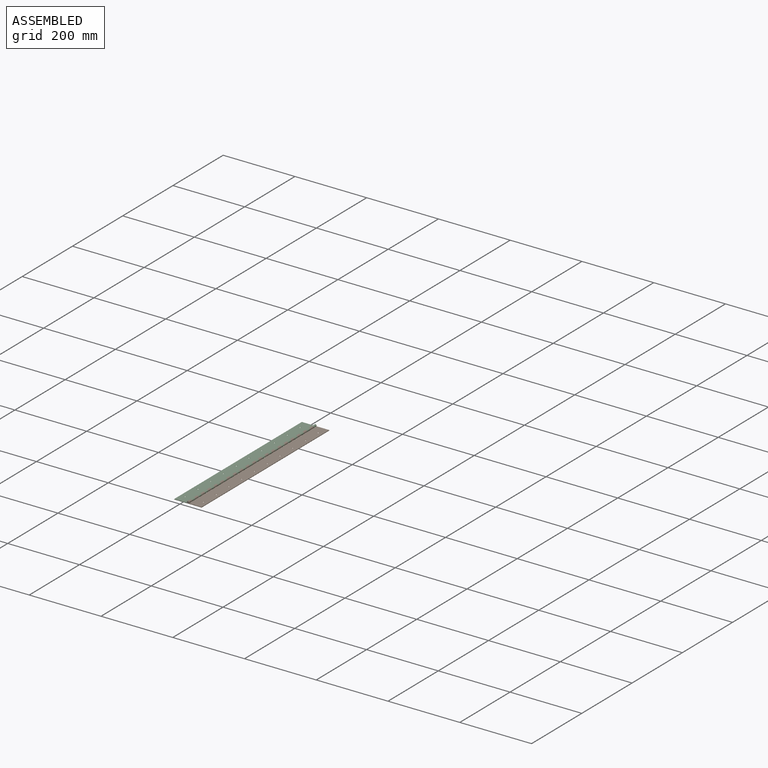
[diagram: assembled view]
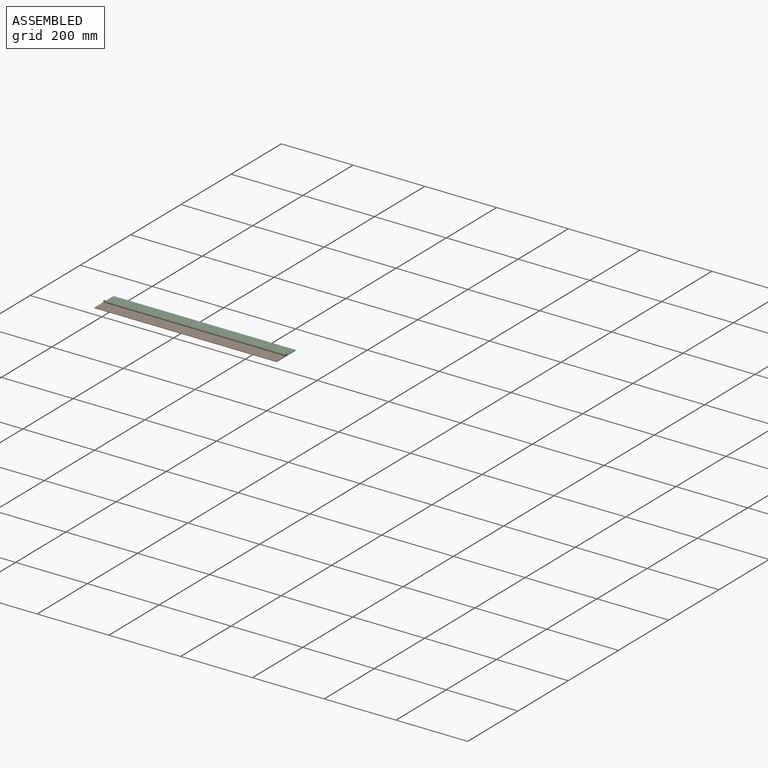
[diagram: assembled view, second angle]
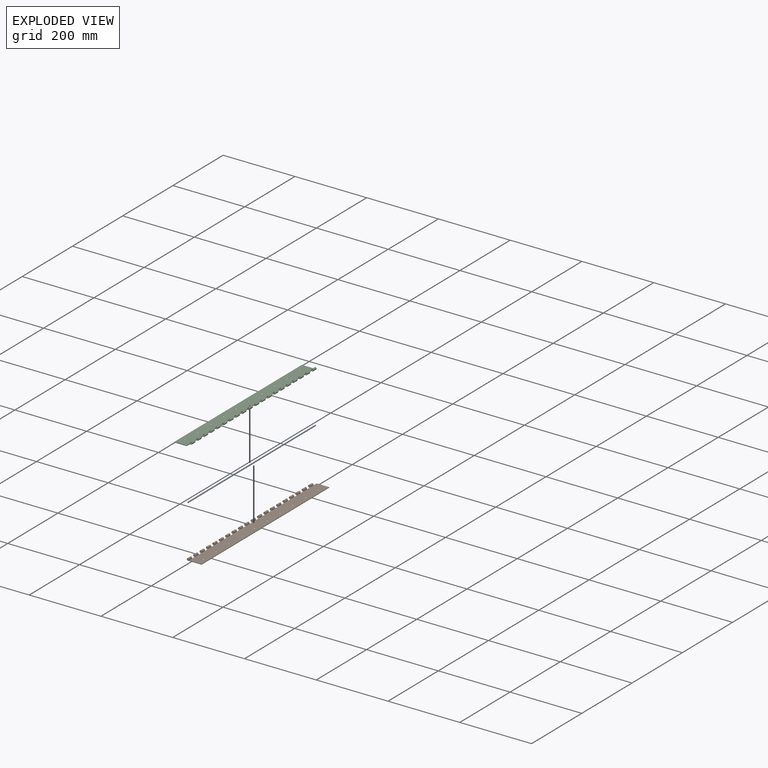
[diagram: exploded view]
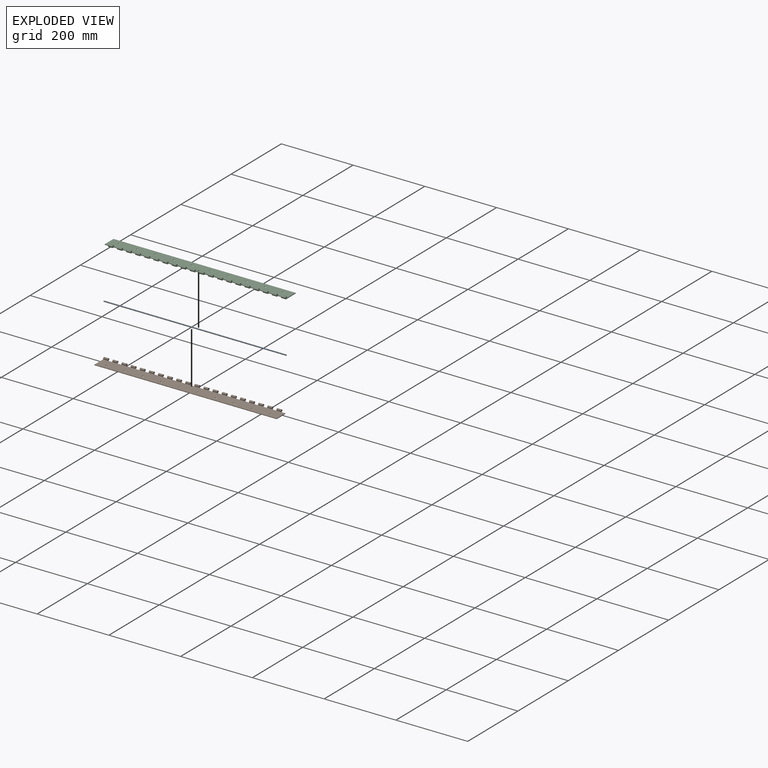
[diagram: exploded view, second angle]
ASSEMBLY  parts=3 mates=2
PART A: 3 faces, bbox 3.2x508x3.2 mm
  f0: cylinder r=1.59mm len=508mm, axis (0,1,0), area 5067.1mm2, adj f1,f2
  f1: plane 3.18x3.18mm, normal (0,-1,0), area 7.9mm2, adj f0
  f2: plane 3.18x3.18mm, normal (0,1,0), area 7.9mm2, adj f0
PART B: 144 faces, bbox 41.2x508x6.2 mm
  f0: cylinder r=1.59mm len=12.7mm, axis (0,1,0), area 105.7mm2, adj f1,f62,f121,f122
  f1: plane 12.7x1.31mm, normal (-0.51,0,-0.86), area 19.4mm2, adj f0,f2,f121,f122
  f2: cylinder r=3.11mm len=12.7mm, axis (0,1,0), area 207.2mm2, adj f1,f60,f121,f122
  f3: cylinder r=1.59mm len=12.7mm, axis (0,1,0), area 105.7mm2, adj f4,f62,f118,f119
  f4: plane 12.7x1.31mm, normal (-0.51,0,-0.86), area 19.4mm2, adj f3,f5,f118,f119
  f5: cylinder r=3.11mm len=12.7mm, axis (0,1,0), area 207.2mm2, adj f4,f60,f118,f119
  f6: cylinder r=1.59mm len=12.7mm, axis (0,1,0), area 105.7mm2, adj f7,f62,f115,f116
  f7: plane 12.7x1.31mm, normal (-0.51,0,-0.86), area 19.4mm2, adj f6,f8,f115,f116
  f8: cylinder r=3.11mm len=12.7mm, axis (0,1,0), area 207.2mm2, adj f7,f60,f115,f116
  f9: cylinder r=1.59mm len=12.7mm, axis (0,1,0), area 105.7mm2, adj f10,f62,f112,f113
  f10: plane 12.7x1.31mm, normal (-0.51,0,-0.86), area 19.4mm2, adj f9,f11,f112,f113
  f11: cylinder r=3.11mm len=12.7mm, axis (0,1,0), area 207.2mm2, adj f10,f60,f112,f113
  f12: cylinder r=1.59mm len=12.7mm, axis (0,1,0), area 105.7mm2, adj f13,f62,f109,f110
  f13: plane 12.7x1.31mm, normal (-0.51,0,-0.86), area 19.4mm2, adj f12,f14,f109,f110
  f14: cylinder r=3.11mm len=12.7mm, axis (0,1,0), area 207.2mm2, adj f13,f60,f109,f110
  f15: cylinder r=1.59mm len=12.7mm, axis (0,1,0), area 105.7mm2, adj f16,f62,f106,f107
  f16: plane 12.7x1.31mm, normal (-0.51,0,-0.86), area 19.4mm2, adj f15,f17,f106,f107
  f17: cylinder r=3.11mm len=12.7mm, axis (0,1,0), area 207.2mm2, adj f16,f60,f106,f107
  f18: cylinder r=1.59mm len=12.7mm, axis (0,1,0), area 105.7mm2, adj f19,f62,f103,f104
  f19: plane 12.7x1.31mm, normal (-0.51,0,-0.86), area 19.4mm2, adj f18,f20,f103,f104
  f20: cylinder r=3.11mm len=12.7mm, axis (0,1,0), area 207.2mm2, adj f19,f60,f103,f104
  f21: cylinder r=1.59mm len=12.7mm, axis (0,1,0), area 105.7mm2, adj f22,f62,f100,f101
  f22: plane 12.7x1.31mm, normal (-0.51,0,-0.86), area 19.4mm2, adj f21,f23,f100,f101
  f23: cylinder r=3.11mm len=12.7mm, axis (0,1,0), area 207.2mm2, adj f22,f60,f100,f101
  f24: cylinder r=1.59mm len=12.7mm, axis (0,1,0), area 105.7mm2, adj f25,f62,f97,f98
  f25: plane 12.7x1.31mm, normal (-0.51,0,-0.86), area 19.4mm2, adj f24,f26,f97,f98
  f26: cylinder r=3.11mm len=12.7mm, axis (0,1,0), area 207.2mm2, adj f25,f60,f97,f98
  f27: cylinder r=1.59mm len=12.7mm, axis (0,1,0), area 105.7mm2, adj f28,f62,f94,f95
  f28: plane 12.7x1.31mm, normal (-0.51,0,-0.86), area 19.4mm2, adj f27,f29,f94,f95
  f29: cylinder r=3.11mm len=12.7mm, axis (0,1,0), area 207.2mm2, adj f28,f60,f94,f95
  f30: cylinder r=1.59mm len=12.7mm, axis (0,1,0), area 105.7mm2, adj f31,f62,f91,f92
  f31: plane 12.7x1.31mm, normal (-0.51,0,-0.86), area 19.4mm2, adj f30,f32,f91,f92
  f32: cylinder r=3.11mm len=12.7mm, axis (0,1,0), area 207.2mm2, adj f31,f60,f91,f92
  f33: cylinder r=1.59mm len=12.7mm, axis (0,1,0), area 105.7mm2, adj f34,f62,f88,f89
  f34: plane 12.7x1.31mm, normal (-0.51,0,-0.86), area 19.4mm2, adj f33,f35,f88,f89
  f35: cylinder r=3.11mm len=12.7mm, axis (0,1,0), area 207.2mm2, adj f34,f60,f88,f89
  f36: cylinder r=1.59mm len=12.7mm, axis (0,1,0), area 105.7mm2, adj f37,f62,f85,f86
  f37: plane 12.7x1.31mm, normal (-0.51,0,-0.86), area 19.4mm2, adj f36,f38,f85,f86
  f38: cylinder r=3.11mm len=12.7mm, axis (0,1,0), area 207.2mm2, adj f37,f60,f85,f86
  f39: cylinder r=1.59mm len=12.7mm, axis (0,1,0), area 105.7mm2, adj f40,f62,f82,f83
  f40: plane 12.7x1.31mm, normal (-0.51,0,-0.86), area 19.4mm2, adj f39,f41,f82,f83
  f41: cylinder r=3.11mm len=12.7mm, axis (0,1,0), area 207.2mm2, adj f40,f60,f82,f83
  f42: cylinder r=1.59mm len=12.7mm, axis (0,1,0), area 105.7mm2, adj f43,f62,f79,f80
  f43: plane 12.7x1.31mm, normal (-0.51,0,-0.86), area 19.4mm2, adj f42,f44,f79,f80
  f44: cylinder r=3.11mm len=12.7mm, axis (0,1,0), area 207.2mm2, adj f43,f60,f79,f80
  f45: cylinder r=1.59mm len=12.7mm, axis (0,1,0), area 105.7mm2, adj f46,f62,f76,f77
  f46: plane 12.7x1.31mm, normal (-0.51,0,-0.86), area 19.4mm2, adj f45,f47,f76,f77
  f47: cylinder r=3.11mm len=12.7mm, axis (0,1,0), area 207.2mm2, adj f46,f60,f76,f77
  f48: cylinder r=1.59mm len=12.7mm, axis (0,1,0), area 105.7mm2, adj f49,f62,f73,f74
  f49: plane 12.7x1.31mm, normal (-0.51,0,-0.86), area 19.4mm2, adj f48,f50,f73,f74
  f50: cylinder r=3.11mm len=12.7mm, axis (0,1,0), area 207.2mm2, adj f49,f60,f73,f74
  f51: cylinder r=1.59mm len=12.7mm, axis (0,1,0), area 105.7mm2, adj f52,f62,f70,f71
  f52: plane 12.7x1.31mm, normal (-0.51,0,-0.86), area 19.4mm2, adj f51,f53,f70,f71
  f53: cylinder r=3.11mm len=12.7mm, axis (0,1,0), area 207.2mm2, adj f52,f60,f70,f71
  f54: cylinder r=1.59mm len=12.7mm, axis (0,1,0), area 105.7mm2, adj f55,f62,f67,f68
  f55: plane 12.7x1.31mm, normal (-0.51,0,-0.86), area 19.4mm2, adj f54,f56,f67,f68
  f56: cylinder r=3.11mm len=12.7mm, axis (0,1,0), area 207.2mm2, adj f55,f60,f67,f68
  f57: cylinder r=1.59mm len=12.7mm, axis (0,1,0), area 105.7mm2, adj f58,f62,f63,f65
  f58: plane 12.7x1.31mm, normal (-0.51,0,-0.86), area 19.4mm2, adj f57,f59,f63,f65
  f59: cylinder r=3.11mm len=12.7mm, axis (0,1,0), area 207.2mm2, adj f58,f60,f63,f65
  f60: plane 508x38.1mm, normal (0,0,-1), area 18459.4mm2, adj f2,f5,f8,f11,f14,f17,f20,f23
  f61: plane 508x1.52mm, normal (1,0,0), area 774.2mm2, adj f60,f62,f63,f64
  f62: plane 508x38.1mm, normal (0,0,1), area 18252.8mm2, adj f0,f3,f6,f9,f12,f15,f18,f21
  f63: plane 41.21x6.22mm, normal (0,-1,0), area 76.8mm2, adj f57,f58,f59,f60,f61,f62
  f64: plane 34.99x1.52mm, normal (0,1,0), area 53.3mm2, adj f60,f61,f62,f123
  f65: plane 6.22x6.22mm, normal (0,1,0), area 23.5mm2, adj f57,f58,f59,f60,f62,f66
  f66: plane 12.7x1.52mm, normal (-1,0,0), area 19.4mm2, adj f60,f62,f65,f67
  f67: plane 6.22x6.22mm, normal (0,-1,0), area 23.5mm2, adj f54,f55,f56,f60,f62,f66
  f68: plane 6.22x6.22mm, normal (0,1,0), area 23.5mm2, adj f54,f55,f56,f60,f62,f69
  f69: plane 12.7x1.52mm, normal (-1,0,0), area 19.4mm2, adj f60,f62,f68,f70
  f70: plane 6.22x6.22mm, normal (0,-1,0), area 23.5mm2, adj f51,f52,f53,f60,f62,f69
  f71: plane 6.22x6.22mm, normal (0,1,0), area 23.5mm2, adj f51,f52,f53,f60,f62,f72
  f72: plane 12.7x1.52mm, normal (-1,0,0), area 19.4mm2, adj f60,f62,f71,f73
  f73: plane 6.22x6.22mm, normal (0,-1,0), area 23.5mm2, adj f48,f49,f50,f60,f62,f72
  f74: plane 6.22x6.22mm, normal (0,1,0), area 23.5mm2, adj f48,f49,f50,f60,f62,f75
  f75: plane 12.7x1.52mm, normal (-1,0,0), area 19.4mm2, adj f60,f62,f74,f76
  f76: plane 6.22x6.22mm, normal (0,-1,0), area 23.5mm2, adj f45,f46,f47,f60,f62,f75
  f77: plane 6.22x6.22mm, normal (0,1,0), area 23.5mm2, adj f45,f46,f47,f60,f62,f78
  f78: plane 12.7x1.52mm, normal (-1,0,0), area 19.4mm2, adj f60,f62,f77,f79
  f79: plane 6.22x6.22mm, normal (0,-1,0), area 23.5mm2, adj f42,f43,f44,f60,f62,f78
  f80: plane 6.22x6.22mm, normal (0,1,0), area 23.5mm2, adj f42,f43,f44,f60,f62,f81
  f81: plane 12.7x1.52mm, normal (-1,0,0), area 19.4mm2, adj f60,f62,f80,f82
  f82: plane 6.22x6.22mm, normal (0,-1,0), area 23.5mm2, adj f39,f40,f41,f60,f62,f81
  f83: plane 6.22x6.22mm, normal (0,1,0), area 23.5mm2, adj f39,f40,f41,f60,f62,f84
  f84: plane 12.7x1.52mm, normal (-1,0,0), area 19.4mm2, adj f60,f62,f83,f85
  f85: plane 6.22x6.22mm, normal (0,-1,0), area 23.5mm2, adj f36,f37,f38,f60,f62,f84
  f86: plane 6.22x6.22mm, normal (0,1,0), area 23.5mm2, adj f36,f37,f38,f60,f62,f87
  f87: plane 12.7x1.52mm, normal (-1,0,0), area 19.4mm2, adj f60,f62,f86,f88
  f88: plane 6.22x6.22mm, normal (0,-1,0), area 23.5mm2, adj f33,f34,f35,f60,f62,f87
  f89: plane 6.22x6.22mm, normal (0,1,0), area 23.5mm2, adj f33,f34,f35,f60,f62,f90
  f90: plane 12.7x1.52mm, normal (-1,0,0), area 19.4mm2, adj f60,f62,f89,f91
  f91: plane 6.22x6.22mm, normal (0,-1,0), area 23.5mm2, adj f30,f31,f32,f60,f62,f90
  f92: plane 6.22x6.22mm, normal (0,1,0), area 23.5mm2, adj f30,f31,f32,f60,f62,f93
  f93: plane 12.7x1.52mm, normal (-1,0,0), area 19.4mm2, adj f60,f62,f92,f94
  f94: plane 6.22x6.22mm, normal (0,-1,0), area 23.5mm2, adj f27,f28,f29,f60,f62,f93
  f95: plane 6.22x6.22mm, normal (0,1,0), area 23.5mm2, adj f27,f28,f29,f60,f62,f96
  f96: plane 12.7x1.52mm, normal (-1,0,0), area 19.4mm2, adj f60,f62,f95,f97
  f97: plane 6.22x6.22mm, normal (0,-1,0), area 23.5mm2, adj f24,f25,f26,f60,f62,f96
  f98: plane 6.22x6.22mm, normal (0,1,0), area 23.5mm2, adj f24,f25,f26,f60,f62,f99
  f99: plane 12.7x1.52mm, normal (-1,0,0), area 19.4mm2, adj f60,f62,f98,f100
  f100: plane 6.22x6.22mm, normal (0,-1,0), area 23.5mm2, adj f21,f22,f23,f60,f62,f99
  f101: plane 6.22x6.22mm, normal (0,1,0), area 23.5mm2, adj f21,f22,f23,f60,f62,f102
  f102: plane 12.7x1.52mm, normal (-1,0,0), area 19.4mm2, adj f60,f62,f101,f103
  f103: plane 6.22x6.22mm, normal (0,-1,0), area 23.5mm2, adj f18,f19,f20,f60,f62,f102
  f104: plane 6.22x6.22mm, normal (0,1,0), area 23.5mm2, adj f18,f19,f20,f60,f62,f105
  f105: plane 12.7x1.52mm, normal (-1,0,0), area 19.4mm2, adj f60,f62,f104,f106
  f106: plane 6.22x6.22mm, normal (0,-1,0), area 23.5mm2, adj f15,f16,f17,f60,f62,f105
  f107: plane 6.22x6.22mm, normal (0,1,0), area 23.5mm2, adj f15,f16,f17,f60,f62,f108
  f108: plane 12.7x1.52mm, normal (-1,0,0), area 19.4mm2, adj f60,f62,f107,f109
  f109: plane 6.22x6.22mm, normal (0,-1,0), area 23.5mm2, adj f12,f13,f14,f60,f62,f108
  f110: plane 6.22x6.22mm, normal (0,1,0), area 23.5mm2, adj f12,f13,f14,f60,f62,f111
  f111: plane 12.7x1.52mm, normal (-1,0,0), area 19.4mm2, adj f60,f62,f110,f112
  f112: plane 6.22x6.22mm, normal (0,-1,0), area 23.5mm2, adj f9,f10,f11,f60,f62,f111
  f113: plane 6.22x6.22mm, normal (0,1,0), area 23.5mm2, adj f9,f10,f11,f60,f62,f114
  f114: plane 12.7x1.52mm, normal (-1,0,0), area 19.4mm2, adj f60,f62,f113,f115
  f115: plane 6.22x6.22mm, normal (0,-1,0), area 23.5mm2, adj f6,f7,f8,f60,f62,f114
  f116: plane 6.22x6.22mm, normal (0,1,0), area 23.5mm2, adj f6,f7,f8,f60,f62,f117
  f117: plane 12.7x1.52mm, normal (-1,0,0), area 19.4mm2, adj f60,f62,f116,f118
  f118: plane 6.22x6.22mm, normal (0,-1,0), area 23.5mm2, adj f3,f4,f5,f60,f62,f117
  f119: plane 6.22x6.22mm, normal (0,1,0), area 23.5mm2, adj f3,f4,f5,f60,f62,f120
  f120: plane 12.7x1.52mm, normal (-1,0,0), area 19.4mm2, adj f60,f62,f119,f121
  f121: plane 6.22x6.22mm, normal (0,-1,0), area 23.5mm2, adj f0,f1,f2,f60,f62,f120
  f122: plane 6.22x6.22mm, normal (0,1,0), area 23.5mm2, adj f0,f1,f2,f60,f62,f123
  f123: plane 12.7x1.52mm, normal (-1,0,0), area 19.4mm2, adj f60,f62,f64,f122
  f124: cylinder r=1.83mm len=3.66mm, axis (0,0,1), area 0.1mm2, adj f60,f125
  f125: cone r=1.83mm half-angle=41deg, axis (0,0,1), area 31.5mm2, adj f62,f124
  f126: cylinder r=1.83mm len=3.66mm, axis (0,0,1), area 0.1mm2, adj f60,f127
  f127: cone r=1.83mm half-angle=41deg, axis (0,0,1), area 31.5mm2, adj f62,f126
  f128: cylinder r=1.83mm len=3.66mm, axis (0,0,1), area 0.1mm2, adj f60,f129
  f129: cone r=1.83mm half-angle=41deg, axis (0,0,1), area 31.5mm2, adj f62,f128
  f130: cylinder r=1.83mm len=3.66mm, axis (0,0,1), area 0.1mm2, adj f60,f131
  f131: cone r=1.83mm half-angle=41deg, axis (0,0,1), area 31.5mm2, adj f62,f130
  f132: cylinder r=1.83mm len=3.66mm, axis (0,0,1), area 0.1mm2, adj f60,f133
  f133: cone r=1.83mm half-angle=41deg, axis (0,0,1), area 31.5mm2, adj f62,f132
  f134: cylinder r=1.83mm len=3.66mm, axis (0,0,1), area 0.1mm2, adj f60,f135
  f135: cone r=1.83mm half-angle=41deg, axis (0,0,1), area 31.5mm2, adj f62,f134
  f136: cylinder r=1.83mm len=3.66mm, axis (0,0,1), area 0.1mm2, adj f60,f137
  f137: cone r=1.83mm half-angle=41deg, axis (0,0,1), area 31.5mm2, adj f62,f136
  f138: cylinder r=1.83mm len=3.66mm, axis (0,0,1), area 0.1mm2, adj f60,f139
  f139: cone r=1.83mm half-angle=41deg, axis (0,0,1), area 31.5mm2, adj f62,f138
  f140: cylinder r=1.83mm len=3.66mm, axis (0,0,1), area 0.1mm2, adj f60,f141
  f141: cone r=1.83mm half-angle=41deg, axis (0,0,1), area 31.5mm2, adj f62,f140
  f142: cylinder r=1.83mm len=3.66mm, axis (0,0,1), area 0.1mm2, adj f60,f143
  f143: cone r=1.83mm half-angle=41deg, axis (0,0,1), area 31.5mm2, adj f62,f142
PART C: 144 faces, bbox 41.2x508x6.2 mm
  f0: cylinder r=3.11mm len=12.7mm, axis (0,1,0), area 207.2mm2, adj f1,f57,f64,f123
  f1: plane 12.7x1.44mm, normal (0.38,0,-0.93), area 19.8mm2, adj f0,f2,f64,f123
  f2: cylinder r=1.59mm len=12.7mm, axis (0,1,0), area 108.5mm2, adj f1,f61,f64,f123
  f3: cylinder r=3.11mm len=12.7mm, axis (0,1,0), area 207.2mm2, adj f4,f57,f120,f122
  f4: plane 12.7x1.44mm, normal (0.38,0,-0.93), area 19.8mm2, adj f3,f5,f120,f122
  f5: cylinder r=1.59mm len=12.7mm, axis (0,1,0), area 108.5mm2, adj f4,f61,f120,f122
  f6: cylinder r=3.11mm len=12.7mm, axis (0,1,0), area 207.2mm2, adj f7,f57,f117,f119
  f7: plane 12.7x1.44mm, normal (0.38,0,-0.93), area 19.8mm2, adj f6,f8,f117,f119
  f8: cylinder r=1.59mm len=12.7mm, axis (0,1,0), area 108.5mm2, adj f7,f61,f117,f119
  f9: cylinder r=3.11mm len=12.7mm, axis (0,1,0), area 207.2mm2, adj f10,f57,f114,f116
  f10: plane 12.7x1.44mm, normal (0.38,0,-0.93), area 19.8mm2, adj f9,f11,f114,f116
  f11: cylinder r=1.59mm len=12.7mm, axis (0,1,0), area 108.5mm2, adj f10,f61,f114,f116
  f12: cylinder r=3.11mm len=12.7mm, axis (0,1,0), area 207.2mm2, adj f13,f57,f111,f113
  f13: plane 12.7x1.44mm, normal (0.38,0,-0.93), area 19.8mm2, adj f12,f14,f111,f113
  f14: cylinder r=1.59mm len=12.7mm, axis (0,1,0), area 108.5mm2, adj f13,f61,f111,f113
  f15: cylinder r=3.11mm len=12.7mm, axis (0,1,0), area 207.2mm2, adj f16,f57,f108,f110
  f16: plane 12.7x1.44mm, normal (0.38,0,-0.93), area 19.8mm2, adj f15,f17,f108,f110
  f17: cylinder r=1.59mm len=12.7mm, axis (0,1,0), area 108.5mm2, adj f16,f61,f108,f110
  f18: cylinder r=3.11mm len=12.7mm, axis (0,1,0), area 207.2mm2, adj f19,f57,f105,f107
  f19: plane 12.7x1.44mm, normal (0.38,0,-0.93), area 19.8mm2, adj f18,f20,f105,f107
  f20: cylinder r=1.59mm len=12.7mm, axis (0,1,0), area 108.5mm2, adj f19,f61,f105,f107
  f21: cylinder r=3.11mm len=12.7mm, axis (0,1,0), area 207.2mm2, adj f22,f57,f102,f104
  f22: plane 12.7x1.44mm, normal (0.38,0,-0.93), area 19.8mm2, adj f21,f23,f102,f104
  f23: cylinder r=1.59mm len=12.7mm, axis (0,1,0), area 108.5mm2, adj f22,f61,f102,f104
  f24: cylinder r=3.11mm len=12.7mm, axis (0,1,0), area 207.2mm2, adj f25,f57,f99,f101
  f25: plane 12.7x1.44mm, normal (0.38,0,-0.93), area 19.8mm2, adj f24,f26,f99,f101
  f26: cylinder r=1.59mm len=12.7mm, axis (0,1,0), area 108.5mm2, adj f25,f61,f99,f101
  f27: cylinder r=3.11mm len=12.7mm, axis (0,1,0), area 207.2mm2, adj f28,f57,f96,f98
  f28: plane 12.7x1.44mm, normal (0.38,0,-0.93), area 19.8mm2, adj f27,f29,f96,f98
  f29: cylinder r=1.59mm len=12.7mm, axis (0,1,0), area 108.5mm2, adj f28,f61,f96,f98
  f30: cylinder r=3.11mm len=12.7mm, axis (0,1,0), area 207.2mm2, adj f31,f57,f93,f95
  f31: plane 12.7x1.44mm, normal (0.38,0,-0.93), area 19.8mm2, adj f30,f32,f93,f95
  f32: cylinder r=1.59mm len=12.7mm, axis (0,1,0), area 108.5mm2, adj f31,f61,f93,f95
  f33: cylinder r=3.11mm len=12.7mm, axis (0,1,0), area 207.2mm2, adj f34,f57,f90,f92
  f34: plane 12.7x1.44mm, normal (0.38,0,-0.93), area 19.8mm2, adj f33,f35,f90,f92
  f35: cylinder r=1.59mm len=12.7mm, axis (0,1,0), area 108.5mm2, adj f34,f61,f90,f92
  f36: cylinder r=3.11mm len=12.7mm, axis (0,1,0), area 207.2mm2, adj f37,f57,f87,f89
  f37: plane 12.7x1.44mm, normal (0.38,0,-0.93), area 19.8mm2, adj f36,f38,f87,f89
  f38: cylinder r=1.59mm len=12.7mm, axis (0,1,0), area 108.5mm2, adj f37,f61,f87,f89
  f39: cylinder r=3.11mm len=12.7mm, axis (0,1,0), area 207.2mm2, adj f40,f57,f84,f86
  f40: plane 12.7x1.44mm, normal (0.38,0,-0.93), area 19.8mm2, adj f39,f41,f84,f86
  f41: cylinder r=1.59mm len=12.7mm, axis (0,1,0), area 108.5mm2, adj f40,f61,f84,f86
  f42: cylinder r=3.11mm len=12.7mm, axis (0,1,0), area 207.2mm2, adj f43,f57,f81,f83
  f43: plane 12.7x1.44mm, normal (0.38,0,-0.93), area 19.8mm2, adj f42,f44,f81,f83
  f44: cylinder r=1.59mm len=12.7mm, axis (0,1,0), area 108.5mm2, adj f43,f61,f81,f83
  f45: cylinder r=3.11mm len=12.7mm, axis (0,1,0), area 207.2mm2, adj f46,f57,f78,f80
  f46: plane 12.7x1.44mm, normal (0.38,0,-0.93), area 19.8mm2, adj f45,f47,f78,f80
  f47: cylinder r=1.59mm len=12.7mm, axis (0,1,0), area 108.5mm2, adj f46,f61,f78,f80
  f48: cylinder r=3.11mm len=12.7mm, axis (0,1,0), area 207.2mm2, adj f49,f57,f75,f77
  f49: plane 12.7x1.44mm, normal (0.38,0,-0.93), area 19.8mm2, adj f48,f50,f75,f77
  f50: cylinder r=1.59mm len=12.7mm, axis (0,1,0), area 108.5mm2, adj f49,f61,f75,f77
  f51: cylinder r=3.11mm len=12.7mm, axis (0,1,0), area 207.2mm2, adj f52,f57,f72,f74
  f52: plane 12.7x1.44mm, normal (0.38,0,-0.93), area 19.8mm2, adj f51,f53,f72,f74
  f53: cylinder r=1.59mm len=12.7mm, axis (0,1,0), area 108.5mm2, adj f52,f61,f72,f74
  f54: cylinder r=3.11mm len=12.7mm, axis (0,1,0), area 207.2mm2, adj f55,f57,f69,f71
  f55: plane 12.7x1.44mm, normal (0.38,0,-0.93), area 19.8mm2, adj f54,f56,f69,f71
  f56: cylinder r=1.59mm len=12.7mm, axis (0,1,0), area 108.5mm2, adj f55,f61,f69,f71
  f57: plane 508x38.1mm, normal (0,0,-1), area 18459.4mm2, adj f0,f3,f6,f9,f12,f15,f18,f21
  f58: cylinder r=3.11mm len=12.7mm, axis (0,1,0), area 207.2mm2, adj f57,f59,f66,f68
  f59: plane 12.7x1.44mm, normal (0.38,0,-0.93), area 19.8mm2, adj f58,f60,f66,f68
  f60: cylinder r=1.59mm len=12.7mm, axis (0,1,0), area 108.5mm2, adj f59,f61,f66,f68
  f61: plane 508x38.1mm, normal (0,0,1), area 18252.8mm2, adj f2,f5,f8,f11,f14,f17,f20,f23
  f62: plane 34.99x1.52mm, normal (0,-1,0), area 53.3mm2, adj f57,f61,f63,f65
  f63: plane 508x1.52mm, normal (-1,0,0), area 774.2mm2, adj f57,f61,f62,f64
  f64: plane 41.21x6.22mm, normal (0,1,0), area 77mm2, adj f0,f1,f2,f57,f61,f63
  f65: plane 12.7x1.52mm, normal (1,0,0), area 19.4mm2, adj f57,f61,f62,f66
  f66: plane 6.22x6.22mm, normal (0,-1,0), area 23.7mm2, adj f57,f58,f59,f60,f61,f65
  f67: plane 12.7x1.52mm, normal (1,0,0), area 19.4mm2, adj f57,f61,f68,f69
  f68: plane 6.22x6.22mm, normal (0,1,0), area 23.7mm2, adj f57,f58,f59,f60,f61,f67
  f69: plane 6.22x6.22mm, normal (0,-1,0), area 23.7mm2, adj f54,f55,f56,f57,f61,f67
  f70: plane 12.7x1.52mm, normal (1,0,0), area 19.4mm2, adj f57,f61,f71,f72
  f71: plane 6.22x6.22mm, normal (0,1,0), area 23.7mm2, adj f54,f55,f56,f57,f61,f70
  f72: plane 6.22x6.22mm, normal (0,-1,0), area 23.7mm2, adj f51,f52,f53,f57,f61,f70
  f73: plane 12.7x1.52mm, normal (1,0,0), area 19.4mm2, adj f57,f61,f74,f75
  f74: plane 6.22x6.22mm, normal (0,1,0), area 23.7mm2, adj f51,f52,f53,f57,f61,f73
  f75: plane 6.22x6.22mm, normal (0,-1,0), area 23.7mm2, adj f48,f49,f50,f57,f61,f73
  f76: plane 12.7x1.52mm, normal (1,0,0), area 19.4mm2, adj f57,f61,f77,f78
  f77: plane 6.22x6.22mm, normal (0,1,0), area 23.7mm2, adj f48,f49,f50,f57,f61,f76
  f78: plane 6.22x6.22mm, normal (0,-1,0), area 23.7mm2, adj f45,f46,f47,f57,f61,f76
  f79: plane 12.7x1.52mm, normal (1,0,0), area 19.4mm2, adj f57,f61,f80,f81
  f80: plane 6.22x6.22mm, normal (0,1,0), area 23.7mm2, adj f45,f46,f47,f57,f61,f79
  f81: plane 6.22x6.22mm, normal (0,-1,0), area 23.7mm2, adj f42,f43,f44,f57,f61,f79
  f82: plane 12.7x1.52mm, normal (1,0,0), area 19.4mm2, adj f57,f61,f83,f84
  f83: plane 6.22x6.22mm, normal (0,1,0), area 23.7mm2, adj f42,f43,f44,f57,f61,f82
  f84: plane 6.22x6.22mm, normal (0,-1,0), area 23.7mm2, adj f39,f40,f41,f57,f61,f82
  f85: plane 12.7x1.52mm, normal (1,0,0), area 19.4mm2, adj f57,f61,f86,f87
  f86: plane 6.22x6.22mm, normal (0,1,0), area 23.7mm2, adj f39,f40,f41,f57,f61,f85
  f87: plane 6.22x6.22mm, normal (0,-1,0), area 23.7mm2, adj f36,f37,f38,f57,f61,f85
  f88: plane 12.7x1.52mm, normal (1,0,0), area 19.4mm2, adj f57,f61,f89,f90
  f89: plane 6.22x6.22mm, normal (0,1,0), area 23.7mm2, adj f36,f37,f38,f57,f61,f88
  f90: plane 6.22x6.22mm, normal (0,-1,0), area 23.7mm2, adj f33,f34,f35,f57,f61,f88
  f91: plane 12.7x1.52mm, normal (1,0,0), area 19.4mm2, adj f57,f61,f92,f93
  f92: plane 6.22x6.22mm, normal (0,1,0), area 23.7mm2, adj f33,f34,f35,f57,f61,f91
  f93: plane 6.22x6.22mm, normal (0,-1,0), area 23.7mm2, adj f30,f31,f32,f57,f61,f91
  f94: plane 12.7x1.52mm, normal (1,0,0), area 19.4mm2, adj f57,f61,f95,f96
  f95: plane 6.22x6.22mm, normal (0,1,0), area 23.7mm2, adj f30,f31,f32,f57,f61,f94
  f96: plane 6.22x6.22mm, normal (0,-1,0), area 23.7mm2, adj f27,f28,f29,f57,f61,f94
  f97: plane 12.7x1.52mm, normal (1,0,0), area 19.4mm2, adj f57,f61,f98,f99
  f98: plane 6.22x6.22mm, normal (0,1,0), area 23.7mm2, adj f27,f28,f29,f57,f61,f97
  f99: plane 6.22x6.22mm, normal (0,-1,0), area 23.7mm2, adj f24,f25,f26,f57,f61,f97
  f100: plane 12.7x1.52mm, normal (1,0,0), area 19.4mm2, adj f57,f61,f101,f102
  f101: plane 6.22x6.22mm, normal (0,1,0), area 23.7mm2, adj f24,f25,f26,f57,f61,f100
  f102: plane 6.22x6.22mm, normal (0,-1,0), area 23.7mm2, adj f21,f22,f23,f57,f61,f100
  f103: plane 12.7x1.52mm, normal (1,0,0), area 19.4mm2, adj f57,f61,f104,f105
  f104: plane 6.22x6.22mm, normal (0,1,0), area 23.7mm2, adj f21,f22,f23,f57,f61,f103
  f105: plane 6.22x6.22mm, normal (0,-1,0), area 23.7mm2, adj f18,f19,f20,f57,f61,f103
  f106: plane 12.7x1.52mm, normal (1,0,0), area 19.4mm2, adj f57,f61,f107,f108
  f107: plane 6.22x6.22mm, normal (0,1,0), area 23.7mm2, adj f18,f19,f20,f57,f61,f106
  f108: plane 6.22x6.22mm, normal (0,-1,0), area 23.7mm2, adj f15,f16,f17,f57,f61,f106
  f109: plane 12.7x1.52mm, normal (1,0,0), area 19.4mm2, adj f57,f61,f110,f111
  f110: plane 6.22x6.22mm, normal (0,1,0), area 23.7mm2, adj f15,f16,f17,f57,f61,f109
  f111: plane 6.22x6.22mm, normal (0,-1,0), area 23.7mm2, adj f12,f13,f14,f57,f61,f109
  f112: plane 12.7x1.52mm, normal (1,0,0), area 19.4mm2, adj f57,f61,f113,f114
  f113: plane 6.22x6.22mm, normal (0,1,0), area 23.7mm2, adj f12,f13,f14,f57,f61,f112
  f114: plane 6.22x6.22mm, normal (0,-1,0), area 23.7mm2, adj f9,f10,f11,f57,f61,f112
  f115: plane 12.7x1.52mm, normal (1,0,0), area 19.4mm2, adj f57,f61,f116,f117
  f116: plane 6.22x6.22mm, normal (0,1,0), area 23.7mm2, adj f9,f10,f11,f57,f61,f115
  f117: plane 6.22x6.22mm, normal (0,-1,0), area 23.7mm2, adj f6,f7,f8,f57,f61,f115
  f118: plane 12.7x1.52mm, normal (1,0,0), area 19.4mm2, adj f57,f61,f119,f120
  f119: plane 6.22x6.22mm, normal (0,1,0), area 23.7mm2, adj f6,f7,f8,f57,f61,f118
  f120: plane 6.22x6.22mm, normal (0,-1,0), area 23.7mm2, adj f3,f4,f5,f57,f61,f118
  f121: plane 12.7x1.52mm, normal (1,0,0), area 19.4mm2, adj f57,f61,f122,f123
  f122: plane 6.22x6.22mm, normal (0,1,0), area 23.7mm2, adj f3,f4,f5,f57,f61,f121
  f123: plane 6.22x6.22mm, normal (0,-1,0), area 23.7mm2, adj f0,f1,f2,f57,f61,f121
  f124: cylinder r=1.83mm len=3.66mm, axis (0,0,1), area 0.1mm2, adj f57,f125
  f125: cone r=1.83mm half-angle=41deg, axis (0,0,1), area 31.5mm2, adj f61,f124
  f126: cylinder r=1.83mm len=3.66mm, axis (0,0,1), area 0.1mm2, adj f57,f127
  f127: cone r=1.83mm half-angle=41deg, axis (0,0,1), area 31.5mm2, adj f61,f126
  f128: cylinder r=1.83mm len=3.66mm, axis (0,0,1), area 0.1mm2, adj f57,f129
  f129: cone r=1.83mm half-angle=41deg, axis (0,0,1), area 31.5mm2, adj f61,f128
  f130: cylinder r=1.83mm len=3.66mm, axis (0,0,1), area 0.1mm2, adj f57,f131
  f131: cone r=1.83mm half-angle=41deg, axis (0,0,1), area 31.5mm2, adj f61,f130
  f132: cylinder r=1.83mm len=3.66mm, axis (0,0,1), area 0.1mm2, adj f57,f133
  f133: cone r=1.83mm half-angle=41deg, axis (0,0,1), area 31.5mm2, adj f61,f132
  f134: cylinder r=1.83mm len=3.66mm, axis (0,0,1), area 0.1mm2, adj f57,f135
  f135: cone r=1.83mm half-angle=41deg, axis (0,0,1), area 31.5mm2, adj f61,f134
  f136: cylinder r=1.83mm len=3.66mm, axis (0,0,1), area 0.1mm2, adj f57,f137
  f137: cone r=1.83mm half-angle=41deg, axis (0,0,1), area 31.5mm2, adj f61,f136
  f138: cylinder r=1.83mm len=3.66mm, axis (0,0,1), area 0.1mm2, adj f57,f139
  f139: cone r=1.83mm half-angle=41deg, axis (0,0,1), area 31.5mm2, adj f61,f138
  f140: cylinder r=1.83mm len=3.66mm, axis (0,0,1), area 0.1mm2, adj f57,f141
  f141: cone r=1.83mm half-angle=41deg, axis (0,0,1), area 31.5mm2, adj f61,f140
  f142: cylinder r=1.83mm len=3.66mm, axis (0,0,1), area 0.1mm2, adj f57,f143
  f143: cone r=1.83mm half-angle=41deg, axis (0,0,1), area 31.5mm2, adj f61,f142
PLACE A at identity fixed
PLACE B rot(axis=(-0.22,-0.85,-0.48),0deg) t=(0,0,0)mm
PLACE C rot(axis=(-0.76,0.6,0.26),0deg) t=(0,0,0)mm
MATE fastened A.f0 <-> B.f2  axis (0,-1,0) through (0,-254,0)mm
MATE revolute B.f0 <-> C.f2  axis (0,1,0) through (0,-241.3,0)mm
